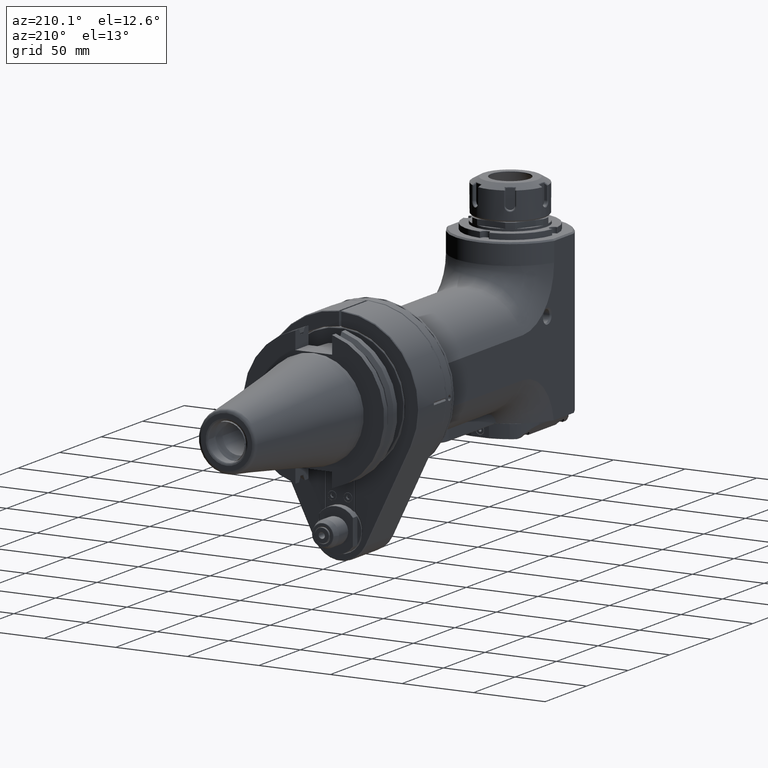
[diagram: clean part render]
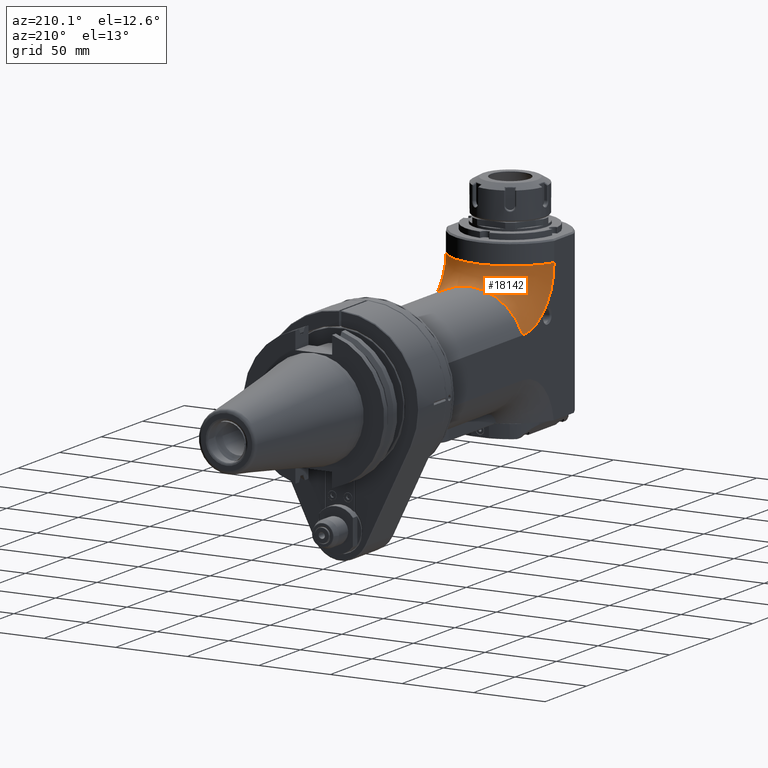
[diagram: same view with one face highlighted and labeled with its STEP entity id]
A machine part, auxiliary view. The second image highlights one B-rep face of the part: STEP entity #18142.
In plain terms, the highlighted toroidal blend (fillet) surface has major radius 51.5 mm and minor (blend) radius 40 mm.
Its self-contained STEP definition (entity closure, byte-faithful):
#126=TOROIDAL_SURFACE('',#19760,51.5,40.);
#1249=CIRCLE('',#19543,37.58058909292);
#1357=CIRCLE('',#19757,37.58058909292);
#1358=CIRCLE('',#19759,40.);
#1359=CIRCLE('',#19761,40.);
#2422=FACE_OUTER_BOUND('',#3519,.T.);
#3519=EDGE_LOOP('',(#14518,#14519,#14520,#14521));
#7857=VERTEX_POINT('',#29727);
#7858=VERTEX_POINT('',#29729);
#8058=VERTEX_POINT('',#30768);
#8059=VERTEX_POINT('',#30770);
#10051=EDGE_CURVE('',#7858,#7857,#1249,.T.);
#10344=EDGE_CURVE('',#8058,#8059,#1357,.T.);
#10354=EDGE_CURVE('',#7857,#8059,#1358,.T.);
#10355=EDGE_CURVE('',#8058,#7858,#1359,.T.);
#14518=ORIENTED_EDGE('',*,*,#10344,.F.);
#14519=ORIENTED_EDGE('',*,*,#10355,.T.);
#14520=ORIENTED_EDGE('',*,*,#10051,.T.);
#14521=ORIENTED_EDGE('',*,*,#10354,.T.);
#18142=ADVANCED_FACE('',(#2422),#126,.T.);
#19543=AXIS2_PLACEMENT_3D('',#29730,#22959,#22960);
#19757=AXIS2_PLACEMENT_3D('',#30771,#23535,#23536);
#19759=AXIS2_PLACEMENT_3D('',#30790,#23548,#23549);
#19760=AXIS2_PLACEMENT_3D('',#30791,#23550,#23551);
#19761=AXIS2_PLACEMENT_3D('',#30792,#23552,#23553);
#22959=DIRECTION('center_axis',(1.,0.,0.));
#22960=DIRECTION('ref_axis',(0.,2.609190007438E-14,-1.));
#23535=DIRECTION('center_axis',(1.,0.,0.));
#23536=DIRECTION('ref_axis',(0.,0.,-1.));
#23548=DIRECTION('center_axis',(0.,0.,-1.));
#23549=DIRECTION('ref_axis',(0.937499999999992,-0.347985272676897,0.));
#23550=DIRECTION('center_axis',(1.,0.,0.));
#23551=DIRECTION('ref_axis',(0.,-1.,0.));
#23552=DIRECTION('center_axis',(0.,1.,0.));
#23553=DIRECTION('ref_axis',(-0.937499999999992,0.,0.347985272676897));
#29727=CARTESIAN_POINT('',(37.5,160.0805890929,51.5));
#29729=CARTESIAN_POINT('',(37.5,122.5,13.91941090708));
#29730=CARTESIAN_POINT('Origin',(37.5,122.5,51.5));
#30768=CARTESIAN_POINT('',(-37.5,122.5,13.91941090708));
#30770=CARTESIAN_POINT('',(-37.5,160.0805890929,51.5));
#30771=CARTESIAN_POINT('Origin',(-37.5,122.5,51.5));
#30790=CARTESIAN_POINT('Origin',(0.,174.,51.5));
#30791=CARTESIAN_POINT('Origin',(0.,122.5,51.5));
#30792=CARTESIAN_POINT('Origin',(0.,122.5,0.));